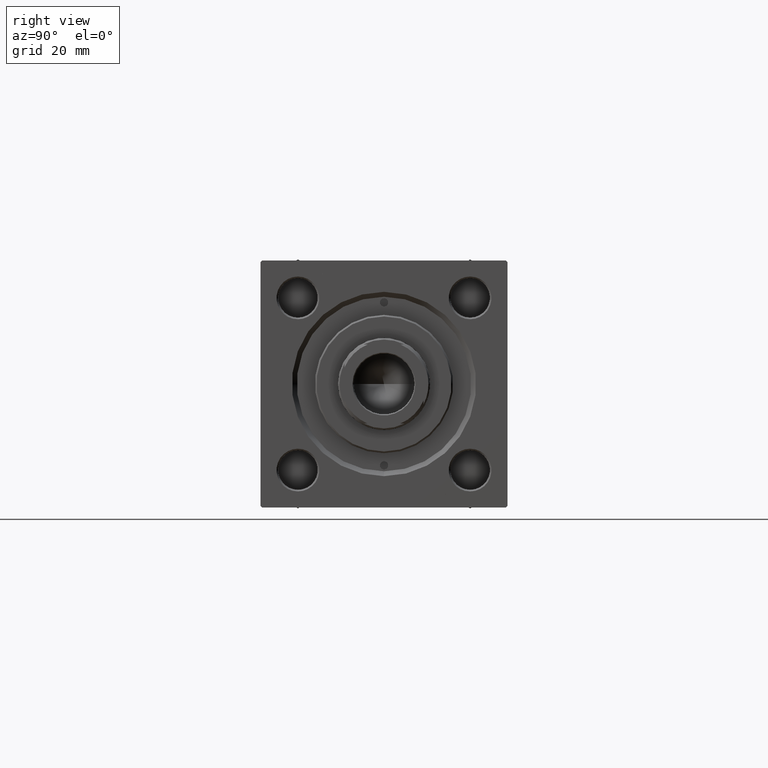
[diagram: clean part render]
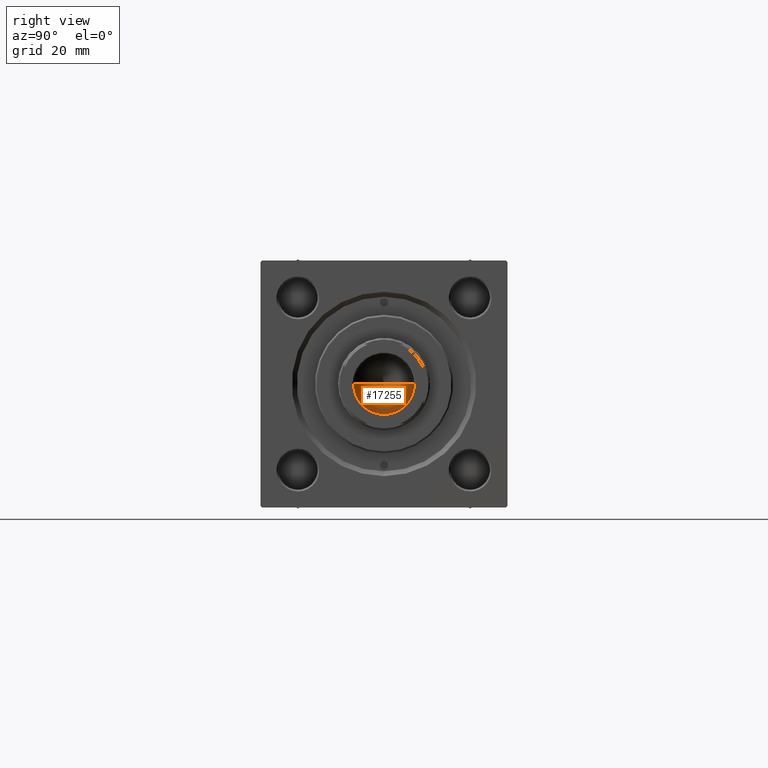
[diagram: same view with one face highlighted and labeled with its STEP entity id]
A machine part, right view. The second image highlights one B-rep face of the part: STEP entity #17255.
In plain terms, the highlighted conical surface has half-angle 59 deg.
Its self-contained STEP definition (entity closure, byte-faithful):
#685 = DIRECTION ( 'NONE',  ( 0.8571673007021117785, 0.000000000000000000, 0.5150380749100550437 ) ) ;
#2551 = DIRECTION ( 'NONE',  ( -0.000000000000000000, -0.000000000000000000, 1.000000000000000000 ) ) ;
#2888 = EDGE_CURVE ( 'NONE', #12805, #5267, #22093, .T. ) ;
#4201 = AXIS2_PLACEMENT_3D ( 'NONE', #6379, #2551, #18102 ) ;
#5106 = VERTEX_POINT ( 'NONE', #45338 ) ;
#5267 = VERTEX_POINT ( 'NONE', #34678 ) ;
#6379 = CARTESIAN_POINT ( 'NONE',  ( 0.000000000000000000, 0.000000000000000000, 107.0000000000000142 ) ) ;
#6840 = EDGE_LOOP ( 'NONE', ( #38890, #23954, #13935 ) ) ;
#8997 = VECTOR ( 'NONE', #32774, 1000.000000000000000 ) ;
#9452 = DIRECTION ( 'NONE',  ( 1.000000000000000000, 0.000000000000000000, 0.000000000000000000 ) ) ;
#9907 = AXIS2_PLACEMENT_3D ( 'NONE', #13265, #28811, #9452 ) ;
#10541 = CARTESIAN_POINT ( 'NONE',  ( -9.249999999999992895, 1.132798289211300712E-15, 107.0000000000000142 ) ) ;
#11575 = EDGE_CURVE ( 'NONE', #5106, #5267, #15122, .T. ) ;
#11624 = CONICAL_SURFACE ( 'NONE', #4201, 9.249999999999992895, 1.029744258676653423 ) ;
#12805 = VERTEX_POINT ( 'NONE', #41603 ) ;
#13265 = CARTESIAN_POINT ( 'NONE',  ( 0.000000000000000000, 0.000000000000000000, 107.0000000000000142 ) ) ;
#13935 = ORIENTED_EDGE ( 'NONE', *, *, #2888, .T. ) ;
#15122 = LINE ( 'NONE', #10541, #8997 ) ;
#15942 = VECTOR ( 'NONE', #685, 1000.000000000000000 ) ;
#17255 = ADVANCED_FACE ( 'NONE', ( #41260 ), #11624, .F. ) ;
#18102 = DIRECTION ( 'NONE',  ( 1.000000000000000000, 0.000000000000000000, 0.000000000000000000 ) ) ;
#22093 = CIRCLE ( 'NONE', #9907, 9.249999999999992895 ) ;
#23954 = ORIENTED_EDGE ( 'NONE', *, *, #49140, .T. ) ;
#28811 = DIRECTION ( 'NONE',  ( -0.000000000000000000, -0.000000000000000000, 1.000000000000000000 ) ) ;
#32774 = DIRECTION ( 'NONE',  ( -0.8571673007021117785, 1.049727191138617956E-16, 0.5150380749100550437 ) ) ;
#34678 = CARTESIAN_POINT ( 'NONE',  ( -9.249999999999992895, 1.132798289211300712E-15, 107.0000000000000142 ) ) ;
#36578 = CARTESIAN_POINT ( 'NONE',  ( 9.249999999999992895, 0.000000000000000000, 107.0000000000000142 ) ) ;
#38890 = ORIENTED_EDGE ( 'NONE', *, *, #11575, .F. ) ;
#41260 = FACE_OUTER_BOUND ( 'NONE', #6840, .T. ) ;
#41603 = CARTESIAN_POINT ( 'NONE',  ( 9.249999999999992895, 0.000000000000000000, 107.0000000000000142 ) ) ;
#43717 = LINE ( 'NONE', #36578, #15942 ) ;
#45338 = CARTESIAN_POINT ( 'NONE',  ( -9.769621978240258809E-15, 0.000000000000000000, 101.4420392739950785 ) ) ;
#49140 = EDGE_CURVE ( 'NONE', #5106, #12805, #43717, .T. ) ;